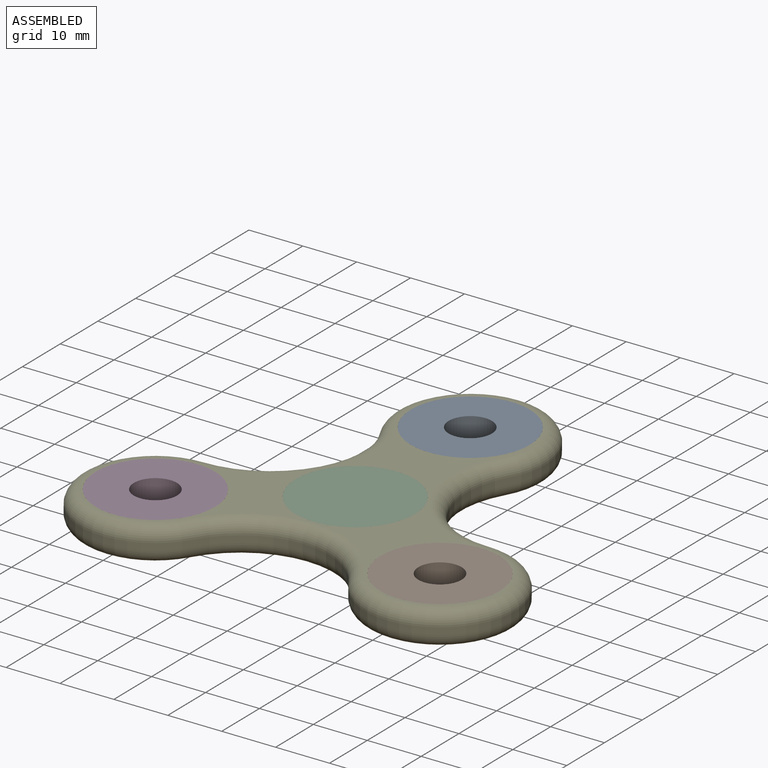
[diagram: assembled view]
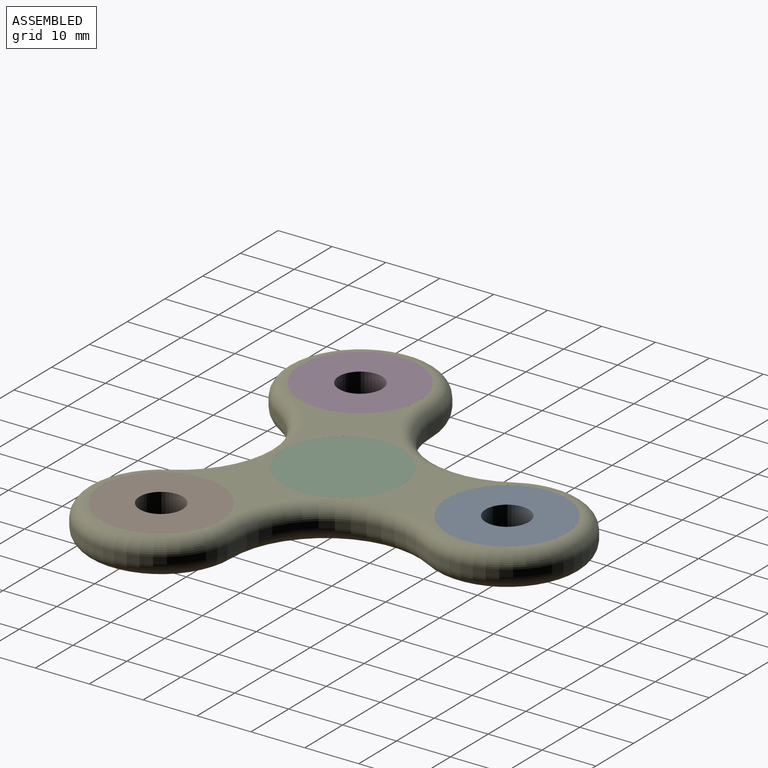
[diagram: assembled view, second angle]
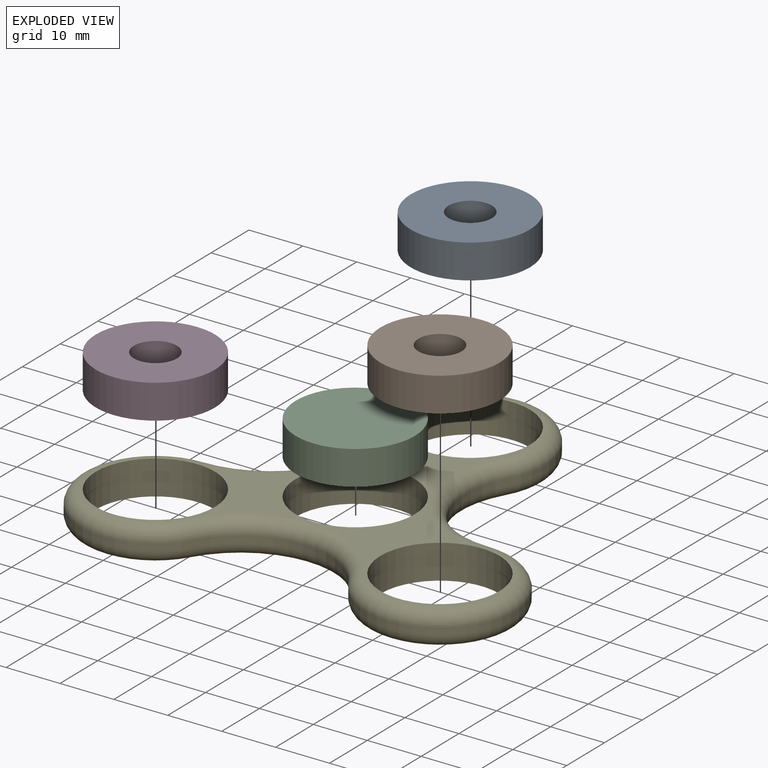
[diagram: exploded view]
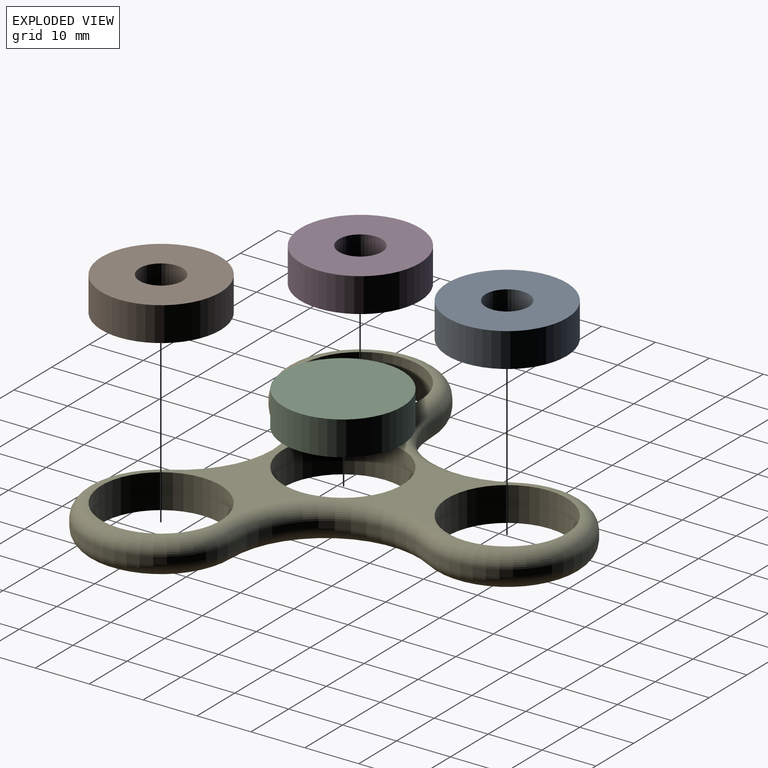
[diagram: exploded view, second angle]
ASSEMBLY  parts=5 mates=4
PART A: 4 faces, bbox 22.1x22.1x6.4 mm
  f0: cylinder r=4mm len=8mm, axis (0,0,-1), area 159.6mm2, adj f2,f3
  f1: cylinder r=11.05mm len=22.1mm, axis (0,0,-1), area 440.8mm2, adj f2,f3
  f2: plane 22.1x22.1mm, normal (0,0,1), area 333.2mm2, adj f0,f1
  f3: plane 22.1x22.1mm, normal (0,0,-1), area 333.2mm2, adj f0,f1
PART B: same geometry as A
PART C: 3 faces, bbox 22.1x22.1x6.4 mm
  f0: cylinder r=11.05mm len=22.1mm, axis (0,0,-1), area 440.8mm2, adj f1,f2
  f1: plane 22.1x22.1mm, normal (0,0,1), area 383.5mm2, adj f0
  f2: plane 22.1x22.1mm, normal (0,0,-1), area 383.5mm2, adj f0
PART D: same geometry as A
PART E: 24 faces, bbox 83x76x6.4 mm
  f0: cylinder r=16.51mm len=28.6mm, axis (0,0,-1), area 43.9mm2, adj f1,f8,f12,f18
  f1: cylinder r=13.97mm len=27.94mm, axis (0,0,-1), area 74.3mm2, adj f0,f2,f13,f19
  f2: cylinder r=16.51mm len=24.77mm, axis (0,0,-1), area 43.9mm2, adj f1,f3,f15,f21
  f3: cylinder r=13.97mm len=27.94mm, axis (0,0,-1), area 74.3mm2, adj f2,f4,f17,f23
  f4: cylinder r=16.51mm len=24.77mm, axis (0,0,-1), area 43.9mm2, adj f3,f8,f16,f22
  f5: cylinder r=11.05mm len=22.1mm, axis (0,0,-1), area 440.8mm2, adj f10,f11
  f6: cylinder r=11.05mm len=22.1mm, axis (0,0,-1), area 440.8mm2, adj f10,f11
  f7: cylinder r=11.05mm len=22.1mm, axis (0,0,-1), area 440.8mm2, adj f10,f11
  f8: cylinder r=13.97mm len=27.94mm, axis (0,0,-1), area 74.3mm2, adj f0,f4,f14,f20
  f9: cylinder r=11.05mm len=22.1mm, axis (0,0,-1), area 440.8mm2, adj f10,f11
  f10: plane 75.65x68.58mm, normal (0,0,1), area 560.4mm2, adj f5,f6,f7,f9,f18,f19,f20,f21
  f11: plane 75.65x68.58mm, normal (0,0,-1), area 560.4mm2, adj f5,f6,f7,f9,f12,f13,f14,f15
  f12: torus R=19.05mm, axis (0,0,1), area 145.7mm2, adj f0,f11,f13,f14
  f13: torus R=11.43mm, axis (0,0,1), area 218mm2, adj f1,f11,f12,f15
  f14: torus R=11.43mm, axis (0,0,1), area 218mm2, adj f8,f11,f12,f16
  f15: torus R=19.05mm, axis (0,0,1), area 145.7mm2, adj f2,f11,f13,f17
  f16: torus R=19.05mm, axis (0,0,1), area 145.7mm2, adj f4,f11,f14,f17
  f17: torus R=11.43mm, axis (0,0,1), area 218mm2, adj f3,f11,f15,f16
  f18: torus R=19.05mm, axis (0,0,1), area 145.7mm2, adj f0,f10,f19,f20
  f19: torus R=11.43mm, axis (0,0,1), area 218mm2, adj f1,f10,f18,f21
  f20: torus R=11.43mm, axis (0,0,1), area 218mm2, adj f8,f10,f18,f22
  f21: torus R=19.05mm, axis (0,0,1), area 145.7mm2, adj f2,f10,f19,f23
  f22: torus R=19.05mm, axis (0,0,1), area 145.7mm2, adj f4,f10,f20,f23
  f23: torus R=11.43mm, axis (0,0,1), area 218mm2, adj f3,f10,f21,f22
PLACE A t=(-21.93,37.18,11.95)mm
PLACE B t=(4.46,-8.54,11.95)mm
PLACE C rot(axis=(0,0,1),90deg) t=(-21.93,6.7,11.95)mm
PLACE D t=(-48.33,-8.54,11.95)mm
PLACE E t=(-21.93,6.7,11.95)mm
MATE fastened A.f1 <-> E.f9  axis (0,0,1) through (-21.93,37.18,18.3)mm
MATE revolute C.f0 <-> E.f5  axis (0,0,1) through (-21.93,6.7,18.3)mm
MATE fastened B.f1 <-> E.f1  axis (0,0,1) through (4.46,-8.54,18.3)mm
MATE fastened D.f1 <-> E.f7  axis (0,0,1) through (-48.33,-8.54,18.3)mm
